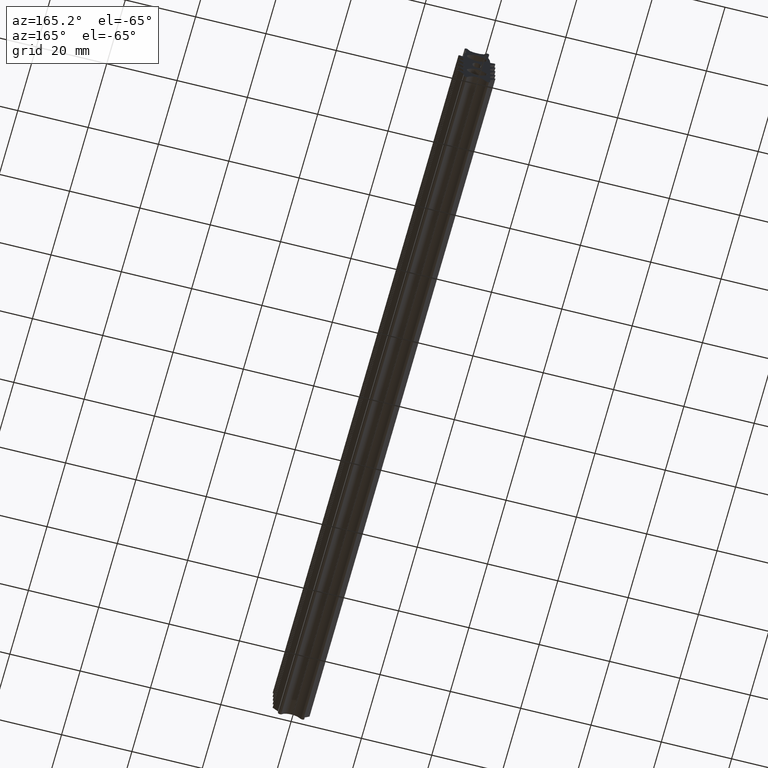
[diagram: clean part render]
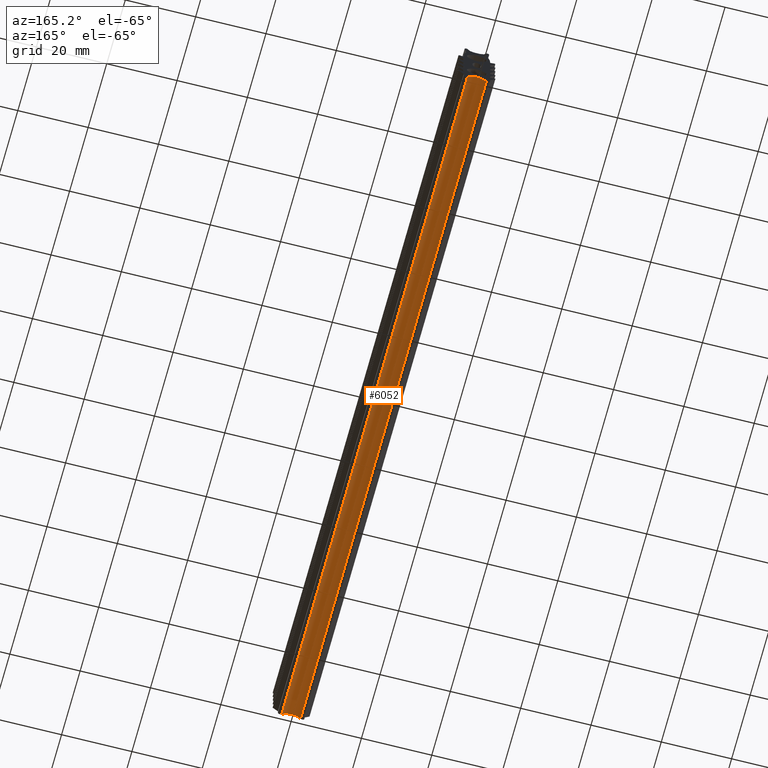
[diagram: same view with one face highlighted and labeled with its STEP entity id]
A machine part, auxiliary view. The second image highlights one B-rep face of the part: STEP entity #6052.
In plain terms, the highlighted face is a freeform B-spline surface patch.
Its self-contained STEP definition (entity closure, byte-faithful):
#49=CARTESIAN_POINT('',(2.665481674339295,0.0,-16.836471148593201));
#50=VERTEX_POINT('',#49);
#51=CARTESIAN_POINT('',(-2.665481674348870,0.0,-16.836471148593201));
#52=VERTEX_POINT('',#51);
#53=CARTESIAN_POINT('',(2.665481674339293,0.0,-16.836471148593201));
#54=CARTESIAN_POINT('',(1.676587301582508,0.0,-15.482575694958138));
#55=CARTESIAN_POINT('',(-4.774847E-012,0.0,-15.482575694958140));
#56=CARTESIAN_POINT('',(-1.676587301592067,0.0,-15.482575694958138));
#57=CARTESIAN_POINT('',(-2.665481674348851,0.0,-16.836471148593208));
#65=(BOUNDED_CURVE()B_SPLINE_CURVE(2,(#53,#54,#55,#56,#57),.UNSPECIFIED.,.F.,.U.)B_SPLINE_CURVE_WITH_KNOTS((3,2,3),(0.0,0.500000000000000,1.0),.UNSPECIFIED.)CURVE()GEOMETRIC_REPRESENTATION_ITEM()RATIONAL_B_SPLINE_CURVE((1.0,0.891578868092580,1.0,0.891578868092580,1.0))REPRESENTATION_ITEM(''));
#66=EDGE_CURVE('',#50,#52,#65,.T.);
#1913=CARTESIAN_POINT('',(2.665481674339295,200.0,-16.836471148593201));
#1914=VERTEX_POINT('',#1913);
#1915=CARTESIAN_POINT('',(-2.665481674348870,200.0,-16.836471148593201));
#1916=VERTEX_POINT('',#1915);
#1917=CARTESIAN_POINT('',(2.665481674339293,200.0,-16.836471148593201));
#1918=CARTESIAN_POINT('',(1.676587301582508,199.999999999999970,-15.482575694958138));
#1919=CARTESIAN_POINT('',(-4.774847E-012,200.0,-15.482575694958140));
#1920=CARTESIAN_POINT('',(-1.676587301592067,199.999999999999970,-15.482575694958138));
#1921=CARTESIAN_POINT('',(-2.665481674348851,200.0,-16.836471148593208));
#1929=(BOUNDED_CURVE()B_SPLINE_CURVE(2,(#1917,#1918,#1919,#1920,#1921),.UNSPECIFIED.,.F.,.U.)B_SPLINE_CURVE_WITH_KNOTS((3,2,3),(0.0,0.500000000000000,1.0),.UNSPECIFIED.)CURVE()GEOMETRIC_REPRESENTATION_ITEM()RATIONAL_B_SPLINE_CURVE((1.0,0.891578868092580,1.0,0.891578868092580,1.0))REPRESENTATION_ITEM(''));
#1930=EDGE_CURVE('',#1914,#1916,#1929,.T.);
#3840=CARTESIAN_POINT('',(2.665481674339295,200.0,-16.836471148593201));
#3841=CARTESIAN_POINT('',(2.665481674339295,0.0,-16.836471148593201));
#3842=QUASI_UNIFORM_CURVE('',1,(#3840,#3841),.UNSPECIFIED.,.F.,.U.);
#3843=EDGE_CURVE('',#1914,#50,#3842,.T.);
#6024=CARTESIAN_POINT('',(-2.665481674348870,200.0,-16.836471148593201));
#6025=CARTESIAN_POINT('',(-2.665481674348870,0.0,-16.836471148593201));
#6026=QUASI_UNIFORM_CURVE('',1,(#6024,#6025),.UNSPECIFIED.,.F.,.U.);
#6027=EDGE_CURVE('',#1916,#52,#6026,.T.);
#6032=CARTESIAN_POINT('',(-2.724971396134378,205.0,-16.920647157946998));
#6033=CARTESIAN_POINT('',(-2.724971396134378,-5.125000000000000,-16.920647157946998));
#6034=CARTESIAN_POINT('',(0.143350142638611,205.0,-12.724559177650114));
#6035=CARTESIAN_POINT('',(0.143350142638611,-5.125000000000000,-12.724559177650114));
#6036=CARTESIAN_POINT('',(2.810015782965007,205.0,-17.051604029611280));
#6037=CARTESIAN_POINT('',(2.810015782965007,-5.125000000000000,-17.051604029611280));
#6045=(BOUNDED_SURFACE()B_SPLINE_SURFACE(1,2,((#6032,#6034,#6036),(#6033,#6035,#6037)),.UNSPECIFIED.,.F.,.F.,.U.)B_SPLINE_SURFACE_WITH_KNOTS((2,2),(3,3),(0.0,210.125000000000000),(0.0,7.168711971788761),.UNSPECIFIED.)GEOMETRIC_REPRESENTATION_ITEM()RATIONAL_B_SPLINE_SURFACE(((1.0,0.544639035015027,1.0),(1.0,0.544639035015027,1.0)))REPRESENTATION_ITEM('')SURFACE());
#6046=ORIENTED_EDGE('',*,*,#66,.T.);
#6047=ORIENTED_EDGE('',*,*,#6027,.F.);
#6048=ORIENTED_EDGE('',*,*,#1930,.F.);
#6049=ORIENTED_EDGE('',*,*,#3843,.T.);
#6050=EDGE_LOOP('',(#6046,#6047,#6048,#6049));
#6051=FACE_OUTER_BOUND('',#6050,.T.);
#6052=ADVANCED_FACE('',(#6051),#6045,.F.);